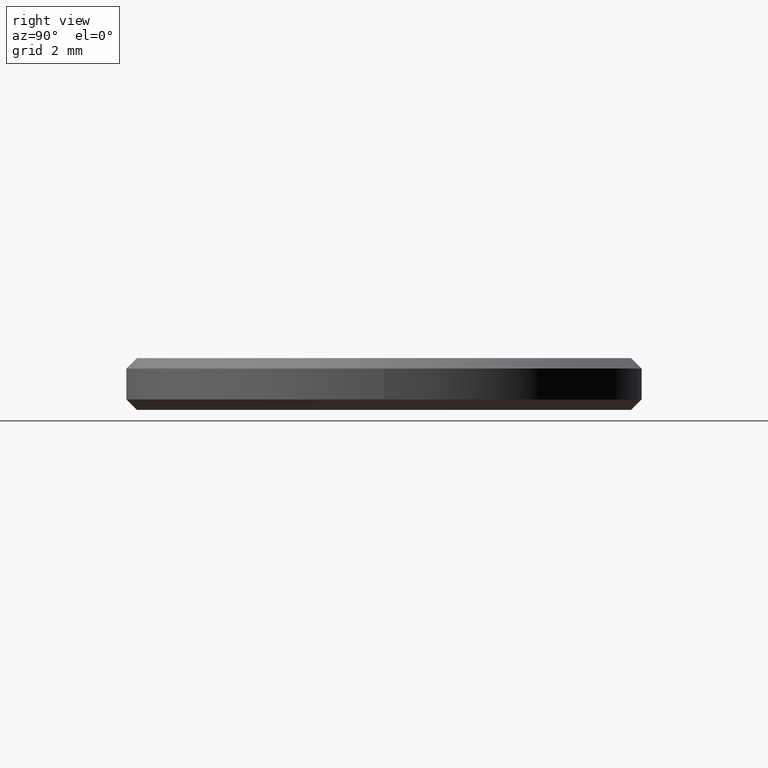
[diagram: clean part render]
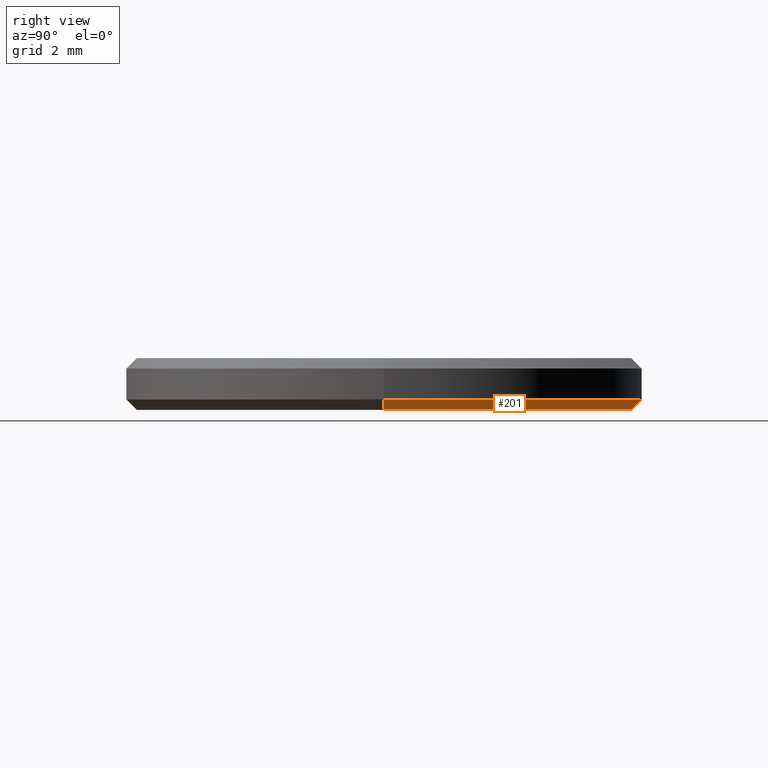
[diagram: same view with one face highlighted and labeled with its STEP entity id]
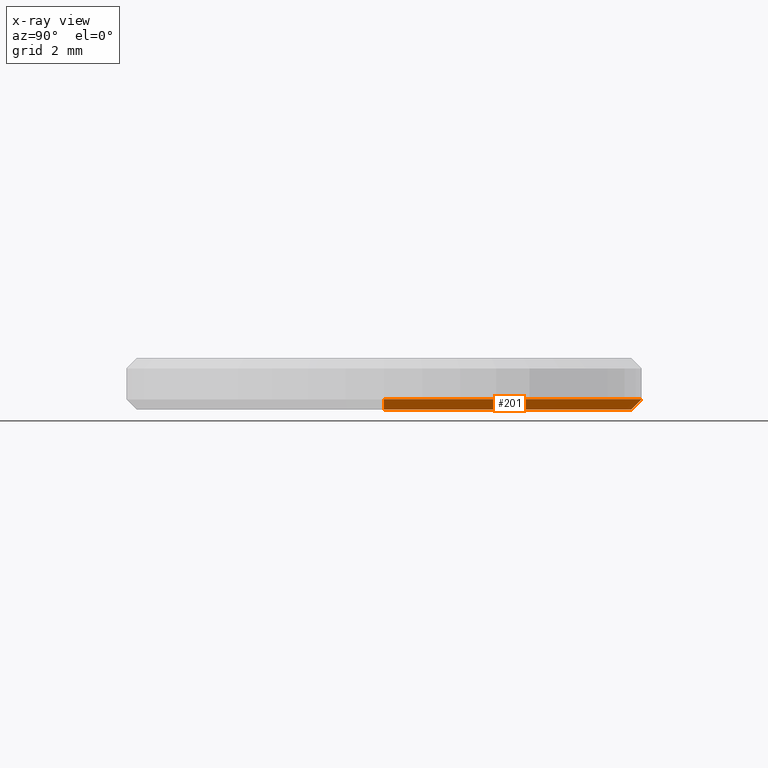
[diagram: x-ray of the same camera — body ghosted, the highlighted face saturated]
A machine part, right view. The second image highlights one B-rep face of the part: STEP entity #201.
The next image is the same camera in x-ray: the body ghosted, the highlighted face saturated — about 0% of this face is hidden behind the body in this view.
In plain terms, the highlighted conical surface has half-angle 45 deg.
Its self-contained STEP definition (entity closure, byte-faithful):
#1 = VERTEX_POINT ( 'NONE', #119 ) ;
#6 = VERTEX_POINT ( 'NONE', #97 ) ;
#22 = ORIENTED_EDGE ( 'NONE', *, *, #31, .F. ) ;
#28 = AXIS2_PLACEMENT_3D ( 'NONE', #216, #182, #83 ) ;
#31 = EDGE_CURVE ( 'NONE', #204, #1, #101, .T. ) ;
#38 = CARTESIAN_POINT ( 'NONE',  ( 0.000000000000000000, 0.000000000000000000, 0.1999999999999996503 ) ) ;
#39 = VECTOR ( 'NONE', #126, 1000.000000000000000 ) ;
#46 = CARTESIAN_POINT ( 'NONE',  ( 5.000000000000000000, 0.000000000000000000, 0.1999999999999996503 ) ) ;
#51 = CARTESIAN_POINT ( 'NONE',  ( -5.000000000000000000, 6.123233995736765296E-16, 0.1999999999999996503 ) ) ;
#60 = ORIENTED_EDGE ( 'NONE', *, *, #96, .F. ) ;
#62 = ORIENTED_EDGE ( 'NONE', *, *, #188, .F. ) ;
#67 = LINE ( 'NONE', #46, #228 ) ;
#83 = DIRECTION ( 'NONE',  ( 1.000000000000000000, 0.000000000000000000, 0.000000000000000000 ) ) ;
#96 = EDGE_CURVE ( 'NONE', #137, #6, #133, .T. ) ;
#97 = CARTESIAN_POINT ( 'NONE',  ( -5.000000000000000000, 0.000000000000000000, 0.1999999999999996503 ) ) ;
#101 = CIRCLE ( 'NONE', #197, 4.799999999999999822 ) ;
#108 = DIRECTION ( 'NONE',  ( -0.000000000000000000, -0.000000000000000000, 1.000000000000000000 ) ) ;
#119 = CARTESIAN_POINT ( 'NONE',  ( 4.799999999999999822, 0.000000000000000000, 0.000000000000000000 ) ) ;
#122 = AXIS2_PLACEMENT_3D ( 'NONE', #38, #108, #187 ) ;
#125 = LINE ( 'NONE', #51, #39 ) ;
#126 = DIRECTION ( 'NONE',  ( -0.7071067811865490160, 8.659560562354950115E-17, 0.7071067811865459074 ) ) ;
#127 = FACE_OUTER_BOUND ( 'NONE', #130, .T. ) ;
#130 = EDGE_LOOP ( 'NONE', ( #22, #174, #60, #62 ) ) ;
#132 = CARTESIAN_POINT ( 'NONE',  ( 0.000000000000000000, 0.000000000000000000, 0.000000000000000000 ) ) ;
#133 = CIRCLE ( 'NONE', #28, 5.000000000000000000 ) ;
#137 = VERTEX_POINT ( 'NONE', #183 ) ;
#143 = EDGE_CURVE ( 'NONE', #204, #6, #125, .T. ) ;
#148 = CARTESIAN_POINT ( 'NONE',  ( -4.799999999999999822, 6.000769315822029754E-16, 0.000000000000000000 ) ) ;
#174 = ORIENTED_EDGE ( 'NONE', *, *, #143, .T. ) ;
#182 = DIRECTION ( 'NONE',  ( -0.000000000000000000, -0.000000000000000000, 1.000000000000000000 ) ) ;
#183 = CARTESIAN_POINT ( 'NONE',  ( 5.000000000000000000, 6.123233995736766282E-16, 0.1999999999999996503 ) ) ;
#187 = DIRECTION ( 'NONE',  ( 1.000000000000000000, 0.000000000000000000, 0.000000000000000000 ) ) ;
#188 = EDGE_CURVE ( 'NONE', #1, #137, #67, .T. ) ;
#191 = DIRECTION ( 'NONE',  ( 1.000000000000000000, 0.000000000000000000, 0.000000000000000000 ) ) ;
#196 = DIRECTION ( 'NONE',  ( 0.7071067811865490160, 0.000000000000000000, 0.7071067811865459074 ) ) ;
#197 = AXIS2_PLACEMENT_3D ( 'NONE', #132, #229, #191 ) ;
#201 = ADVANCED_FACE ( 'NONE', ( #127 ), #238, .T. ) ;
#204 = VERTEX_POINT ( 'NONE', #148 ) ;
#216 = CARTESIAN_POINT ( 'NONE',  ( 0.000000000000000000, 0.000000000000000000, 0.1999999999999996503 ) ) ;
#228 = VECTOR ( 'NONE', #196, 1000.000000000000000 ) ;
#229 = DIRECTION ( 'NONE',  ( -0.000000000000000000, -0.000000000000000000, -1.000000000000000000 ) ) ;
#238 = CONICAL_SURFACE ( 'NONE', #122, 5.000000000000000000, 0.7853981633974503884 ) ;